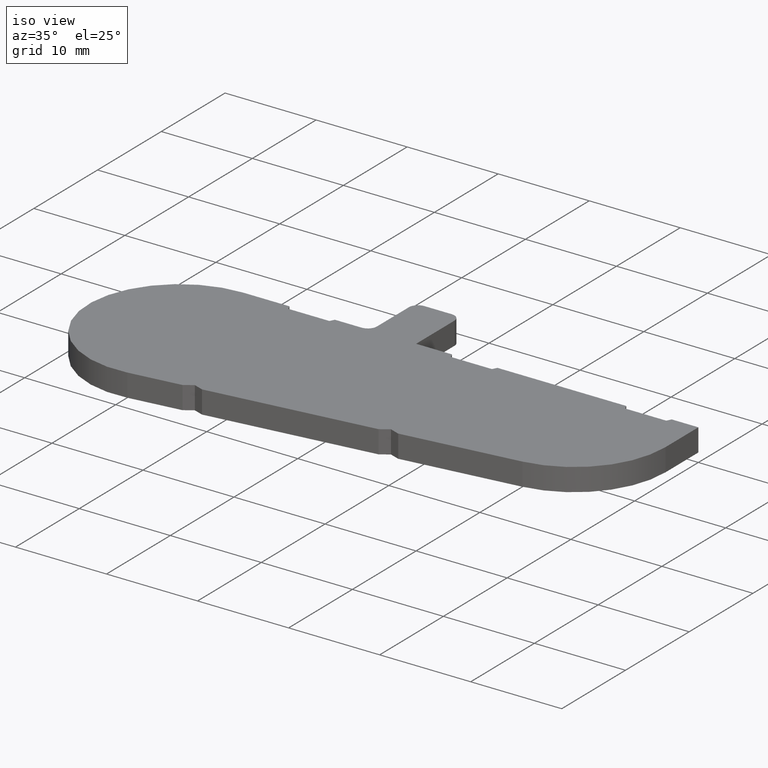
[diagram: clean part render]
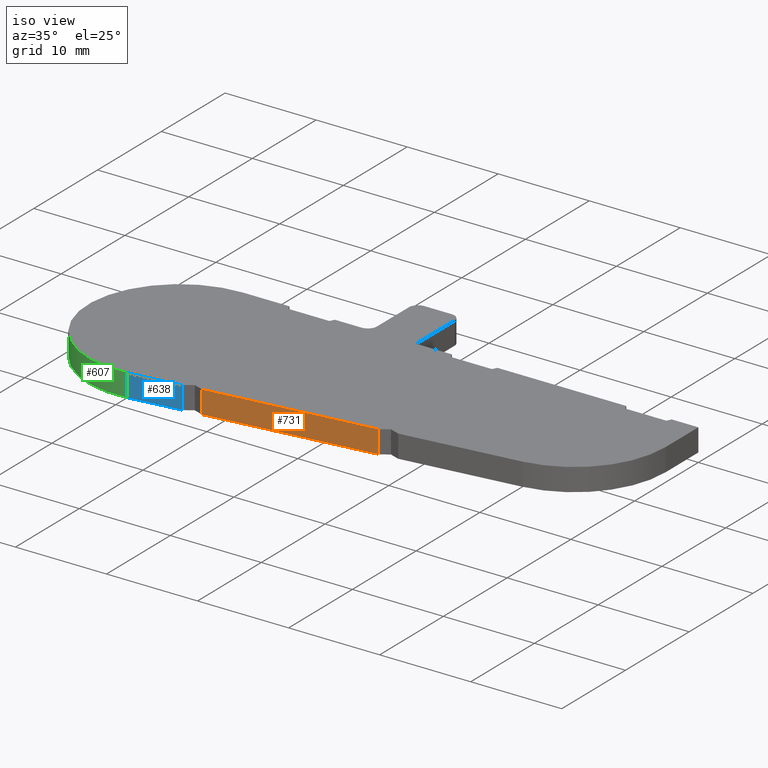
[diagram: same view with three faces highlighted in distinct colors, each labeled with its STEP entity id]
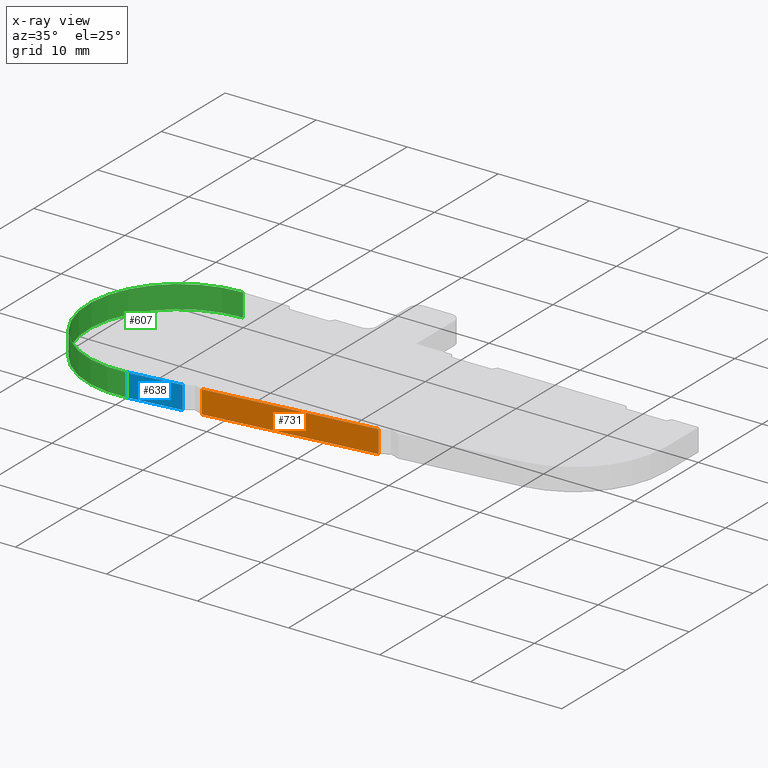
[diagram: x-ray of the same camera — body ghosted, the three highlighted faces saturated]
A machine part, iso view with three faces highlighted in distinct colors.
The next image is the same camera in x-ray (body ghosted, the three faces saturated) — at least one of them is partly hidden behind the body in this view.
Their STEP definitions:

[orange] entity #731 — the highlighted planar face has unit normal (0.1207, -0.9927, 0).
#675=CARTESIAN_POINT('',(8.792684418921908,-9.004233783510017,0.0));
#676=VERTEX_POINT('',#675);
#683=CARTESIAN_POINT('',(8.792684418921908,-9.004233783510017,2.500000000000000));
#684=VERTEX_POINT('',#683);
#685=CARTESIAN_POINT('',(8.792684418921908,-9.004233783510017,0.0));
#686=DIRECTION('',(0.0,0.0,1.0));
#687=VECTOR('',#686,2.500000000000000);
#688=LINE('',#685,#687);
#689=EDGE_CURVE('',#676,#684,#688,.T.);
#701=CARTESIAN_POINT('',(8.792684418921908,-9.004233783510017,0.0));
#702=DIRECTION('',(0.120741426966118,-0.992683991919979,0.0));
#703=DIRECTION('',(0.992683991919979,0.120741426966118,0.0));
#704=AXIS2_PLACEMENT_3D('',#701,#702,#703);
#705=PLANE('',#704);
#706=CARTESIAN_POINT('',(26.660996273461265,-6.830888098122358,0.0));
#707=VERTEX_POINT('',#706);
#708=CARTESIAN_POINT('',(8.792684418921908,-9.004233783510017,0.0));
#709=DIRECTION('',(0.992683991919979,0.120741426966118,0.0));
#710=VECTOR('',#709,17.999999999979579);
#711=LINE('',#708,#710);
#712=EDGE_CURVE('',#676,#707,#711,.T.);
#713=ORIENTED_EDGE('',*,*,#712,.T.);
#714=CARTESIAN_POINT('',(26.660996273461265,-6.830888098122358,2.500000000000000));
#715=VERTEX_POINT('',#714);
#716=CARTESIAN_POINT('',(26.660996273461265,-6.830888098122358,0.0));
#717=DIRECTION('',(0.0,0.0,1.0));
#718=VECTOR('',#717,2.500000000000000);
#719=LINE('',#716,#718);
#720=EDGE_CURVE('',#707,#715,#719,.T.);
#721=ORIENTED_EDGE('',*,*,#720,.T.);
#722=CARTESIAN_POINT('',(8.792684418921908,-9.004233783510017,2.500000000000000));
#723=DIRECTION('',(0.992683991919979,0.120741426966118,0.0));
#724=VECTOR('',#723,17.999999999979579);
#725=LINE('',#722,#724);
#726=EDGE_CURVE('',#684,#715,#725,.T.);
#727=ORIENTED_EDGE('',*,*,#726,.F.);
#728=ORIENTED_EDGE('',*,*,#689,.F.);
#729=EDGE_LOOP('',(#713,#721,#727,#728));
#730=FACE_OUTER_BOUND('',#729,.T.);
#731=ADVANCED_FACE('',(#730),#705,.T.);

[blue] entity #638 — the highlighted planar face has unit normal (0.1207, -0.9927, 0).
#580=CARTESIAN_POINT('',(1.207414269662650,-9.926839919199665,0.0));
#581=VERTEX_POINT('',#580);
#589=CARTESIAN_POINT('',(1.207414269662650,-9.926839919199665,2.500000000000000));
#590=VERTEX_POINT('',#589);
#591=CARTESIAN_POINT('',(1.207414269662650,-9.926839919199665,0.0));
#592=DIRECTION('',(0.0,0.0,1.0));
#593=VECTOR('',#592,2.500000000000000);
#594=LINE('',#591,#593);
#595=EDGE_CURVE('',#581,#590,#594,.T.);
#608=CARTESIAN_POINT('',(1.207414269662650,-9.926839919199665,0.0));
#609=DIRECTION('',(0.120741426966250,-0.992683991919963,0.0));
#610=DIRECTION('',(0.992683991919963,0.120741426966250,0.0));
#611=AXIS2_PLACEMENT_3D('',#608,#609,#610);
#612=PLANE('',#611);
#613=CARTESIAN_POINT('',(6.807316435082385,-9.245716637442456,0.0));
#614=VERTEX_POINT('',#613);
#615=CARTESIAN_POINT('',(1.207414269662650,-9.926839919199665,0.0));
#616=DIRECTION('',(0.992683991919963,0.120741426966250,0.0));
#617=VECTOR('',#616,5.641173032909157);
#618=LINE('',#615,#617);
#619=EDGE_CURVE('',#581,#614,#618,.T.);
#620=ORIENTED_EDGE('',*,*,#619,.T.);
#621=CARTESIAN_POINT('',(6.807316435082385,-9.245716637442456,2.500000000000000));
#622=VERTEX_POINT('',#621);
#623=CARTESIAN_POINT('',(6.807316435082385,-9.245716637442456,0.0));
#624=DIRECTION('',(0.0,0.0,1.0));
#625=VECTOR('',#624,2.500000000000000);
#626=LINE('',#623,#625);
#627=EDGE_CURVE('',#614,#622,#626,.T.);
#628=ORIENTED_EDGE('',*,*,#627,.T.);
#629=CARTESIAN_POINT('',(1.207414269662650,-9.926839919199665,2.500000000000000));
#630=DIRECTION('',(0.992683991919963,0.120741426966250,0.0));
#631=VECTOR('',#630,5.641173032909157);
#632=LINE('',#629,#631);
#633=EDGE_CURVE('',#590,#622,#632,.T.);
#634=ORIENTED_EDGE('',*,*,#633,.F.);
#635=ORIENTED_EDGE('',*,*,#595,.F.);
#636=EDGE_LOOP('',(#620,#628,#634,#635));
#637=FACE_OUTER_BOUND('',#636,.T.);
#638=ADVANCED_FACE('',(#637),#612,.T.);

[green] entity #607 — the highlighted cylindrical surface (partial cylindrical patch) has radius 10 mm, axis along (0, 0, 1).
#549=CARTESIAN_POINT('',(-0.000000467949107,10.0,0.0));
#550=VERTEX_POINT('',#549);
#557=CARTESIAN_POINT('',(-0.000000467949107,10.0,2.500000000000000));
#558=VERTEX_POINT('',#557);
#559=CARTESIAN_POINT('',(-0.000000467949107,10.0,0.0));
#560=DIRECTION('',(0.0,0.0,1.0));
#561=VECTOR('',#560,2.500000000000000);
#562=LINE('',#559,#561);
#563=EDGE_CURVE('',#550,#558,#562,.T.);
#575=CARTESIAN_POINT('',(0.0,0.0,0.0));
#576=DIRECTION('',(0.0,0.0,1.0));
#577=DIRECTION('',(1.0,0.0,0.0));
#578=AXIS2_PLACEMENT_3D('',#575,#576,#577);
#579=CYLINDRICAL_SURFACE('',#578,10.0);
#580=CARTESIAN_POINT('',(1.207414269662650,-9.926839919199665,0.0));
#581=VERTEX_POINT('',#580);
#582=CARTESIAN_POINT('',(0.0,0.0,0.0));
#583=DIRECTION('',(0.0,0.0,1.0));
#584=DIRECTION('',(1.0,0.0,0.0));
#585=AXIS2_PLACEMENT_3D('',#582,#583,#584);
#586=CIRCLE('',#585,10.0);
#587=EDGE_CURVE('',#550,#581,#586,.T.);
#588=ORIENTED_EDGE('',*,*,#587,.T.);
#589=CARTESIAN_POINT('',(1.207414269662650,-9.926839919199665,2.500000000000000));
#590=VERTEX_POINT('',#589);
#591=CARTESIAN_POINT('',(1.207414269662650,-9.926839919199665,0.0));
#592=DIRECTION('',(0.0,0.0,1.0));
#593=VECTOR('',#592,2.500000000000000);
#594=LINE('',#591,#593);
#595=EDGE_CURVE('',#581,#590,#594,.T.);
#596=ORIENTED_EDGE('',*,*,#595,.T.);
#597=CARTESIAN_POINT('',(0.0,0.0,2.500000000000000));
#598=DIRECTION('',(0.0,0.0,1.0));
#599=DIRECTION('',(1.0,0.0,0.0));
#600=AXIS2_PLACEMENT_3D('',#597,#598,#599);
#601=CIRCLE('',#600,10.0);
#602=EDGE_CURVE('',#558,#590,#601,.T.);
#603=ORIENTED_EDGE('',*,*,#602,.F.);
#604=ORIENTED_EDGE('',*,*,#563,.F.);
#605=EDGE_LOOP('',(#588,#596,#603,#604));
#606=FACE_OUTER_BOUND('',#605,.T.);
#607=ADVANCED_FACE('',(#606),#579,.T.);